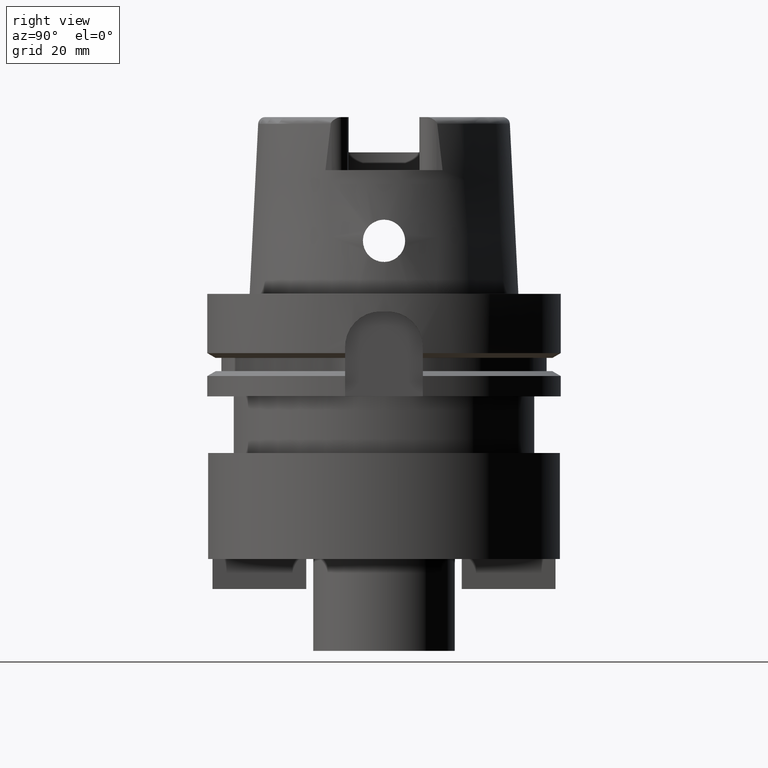
[diagram: clean part render]
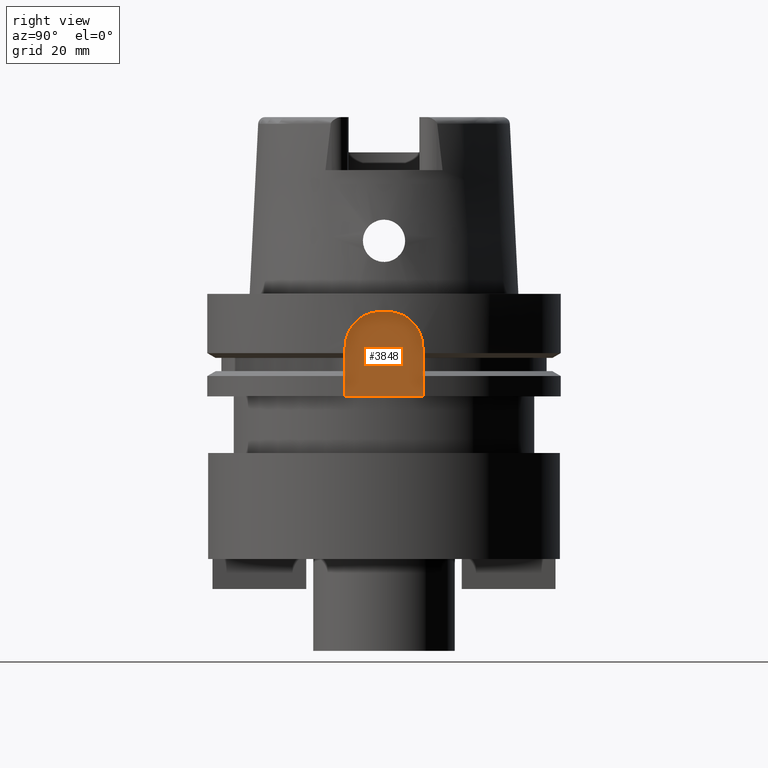
[diagram: same view with one face highlighted and labeled with its STEP entity id]
A machine part, right view. The second image highlights one B-rep face of the part: STEP entity #3848.
In plain terms, the highlighted planar face has unit normal (1, 0, 0).
Its self-contained STEP definition (entity closure, byte-faithful):
#1450=DIRECTION('',(0.E0,-1.E0,0.E0));
#1451=VECTOR('',#1450,2.2E1);
#1452=CARTESIAN_POINT('',(4.4E1,1.1E1,-2.9E1));
#1453=LINE('',#1452,#1451);
#1457=DIRECTION('',(0.E0,0.E0,1.E0));
#1458=VECTOR('',#1457,1.4E1);
#1459=CARTESIAN_POINT('',(4.4E1,-1.1E1,-2.9E1));
#1460=LINE('',#1459,#1458);
#1464=CARTESIAN_POINT('',(4.4E1,-1.E0,-1.5E1));
#1465=DIRECTION('',(-1.E0,0.E0,0.E0));
#1466=DIRECTION('',(0.E0,-1.E0,0.E0));
#1467=AXIS2_PLACEMENT_3D('',#1464,#1465,#1466);
#1472=DIRECTION('',(0.E0,1.E0,0.E0));
#1473=VECTOR('',#1472,2.E0);
#1474=CARTESIAN_POINT('',(4.4E1,-1.E0,-5.E0));
#1475=LINE('',#1474,#1473);
#1479=CARTESIAN_POINT('',(4.4E1,1.E0,-1.5E1));
#1480=DIRECTION('',(-1.E0,0.E0,0.E0));
#1481=DIRECTION('',(0.E0,2.084998840246E-14,1.E0));
#1482=AXIS2_PLACEMENT_3D('',#1479,#1480,#1481);
#1487=DIRECTION('',(0.E0,0.E0,-1.E0));
#1488=VECTOR('',#1487,1.4E1);
#1489=CARTESIAN_POINT('',(4.4E1,1.1E1,-1.5E1));
#1490=LINE('',#1489,#1488);
#2552=CARTESIAN_POINT('',(4.4E1,-1.1E1,-2.9E1));
#2553=VERTEX_POINT('',#2552);
#2554=CARTESIAN_POINT('',(4.4E1,1.1E1,-2.9E1));
#2555=VERTEX_POINT('',#2554);
#2754=CARTESIAN_POINT('',(4.4E1,-1.1E1,-1.5E1));
#2755=VERTEX_POINT('',#2754);
#2762=CARTESIAN_POINT('',(4.4E1,1.E0,-5.E0));
#2763=VERTEX_POINT('',#2762);
#2764=CARTESIAN_POINT('',(4.4E1,-1.E0,-5.E0));
#2765=VERTEX_POINT('',#2764);
#2766=CARTESIAN_POINT('',(4.4E1,1.1E1,-1.5E1));
#2767=VERTEX_POINT('',#2766);
#3831=CARTESIAN_POINT('',(4.4E1,0.E0,0.E0));
#3832=DIRECTION('',(1.E0,0.E0,0.E0));
#3833=DIRECTION('',(0.E0,0.E0,-1.E0));
#3834=AXIS2_PLACEMENT_3D('',#3831,#3832,#3833);
#3835=PLANE('',#3834);
#3836=ORIENTED_EDGE('',*,*,#3746,.T.);
#3838=ORIENTED_EDGE('',*,*,#3837,.T.);
#3840=ORIENTED_EDGE('',*,*,#3839,.T.);
#3842=ORIENTED_EDGE('',*,*,#3841,.T.);
#3844=ORIENTED_EDGE('',*,*,#3843,.T.);
#3845=ORIENTED_EDGE('',*,*,#3811,.T.);
#3846=EDGE_LOOP('',(#3836,#3838,#3840,#3842,#3844,#3845));
#3847=FACE_OUTER_BOUND('',#3846,.F.);
#1468=CIRCLE('',#1467,1.E1);
#1483=CIRCLE('',#1482,1.E1);
#3746=EDGE_CURVE('',#2555,#2553,#1453,.T.);
#3811=EDGE_CURVE('',#2767,#2555,#1490,.T.);
#3837=EDGE_CURVE('',#2553,#2755,#1460,.T.);
#3839=EDGE_CURVE('',#2755,#2765,#1468,.T.);
#3841=EDGE_CURVE('',#2765,#2763,#1475,.T.);
#3843=EDGE_CURVE('',#2763,#2767,#1483,.T.);
#3848=ADVANCED_FACE('',(#3847),#3835,.T.);